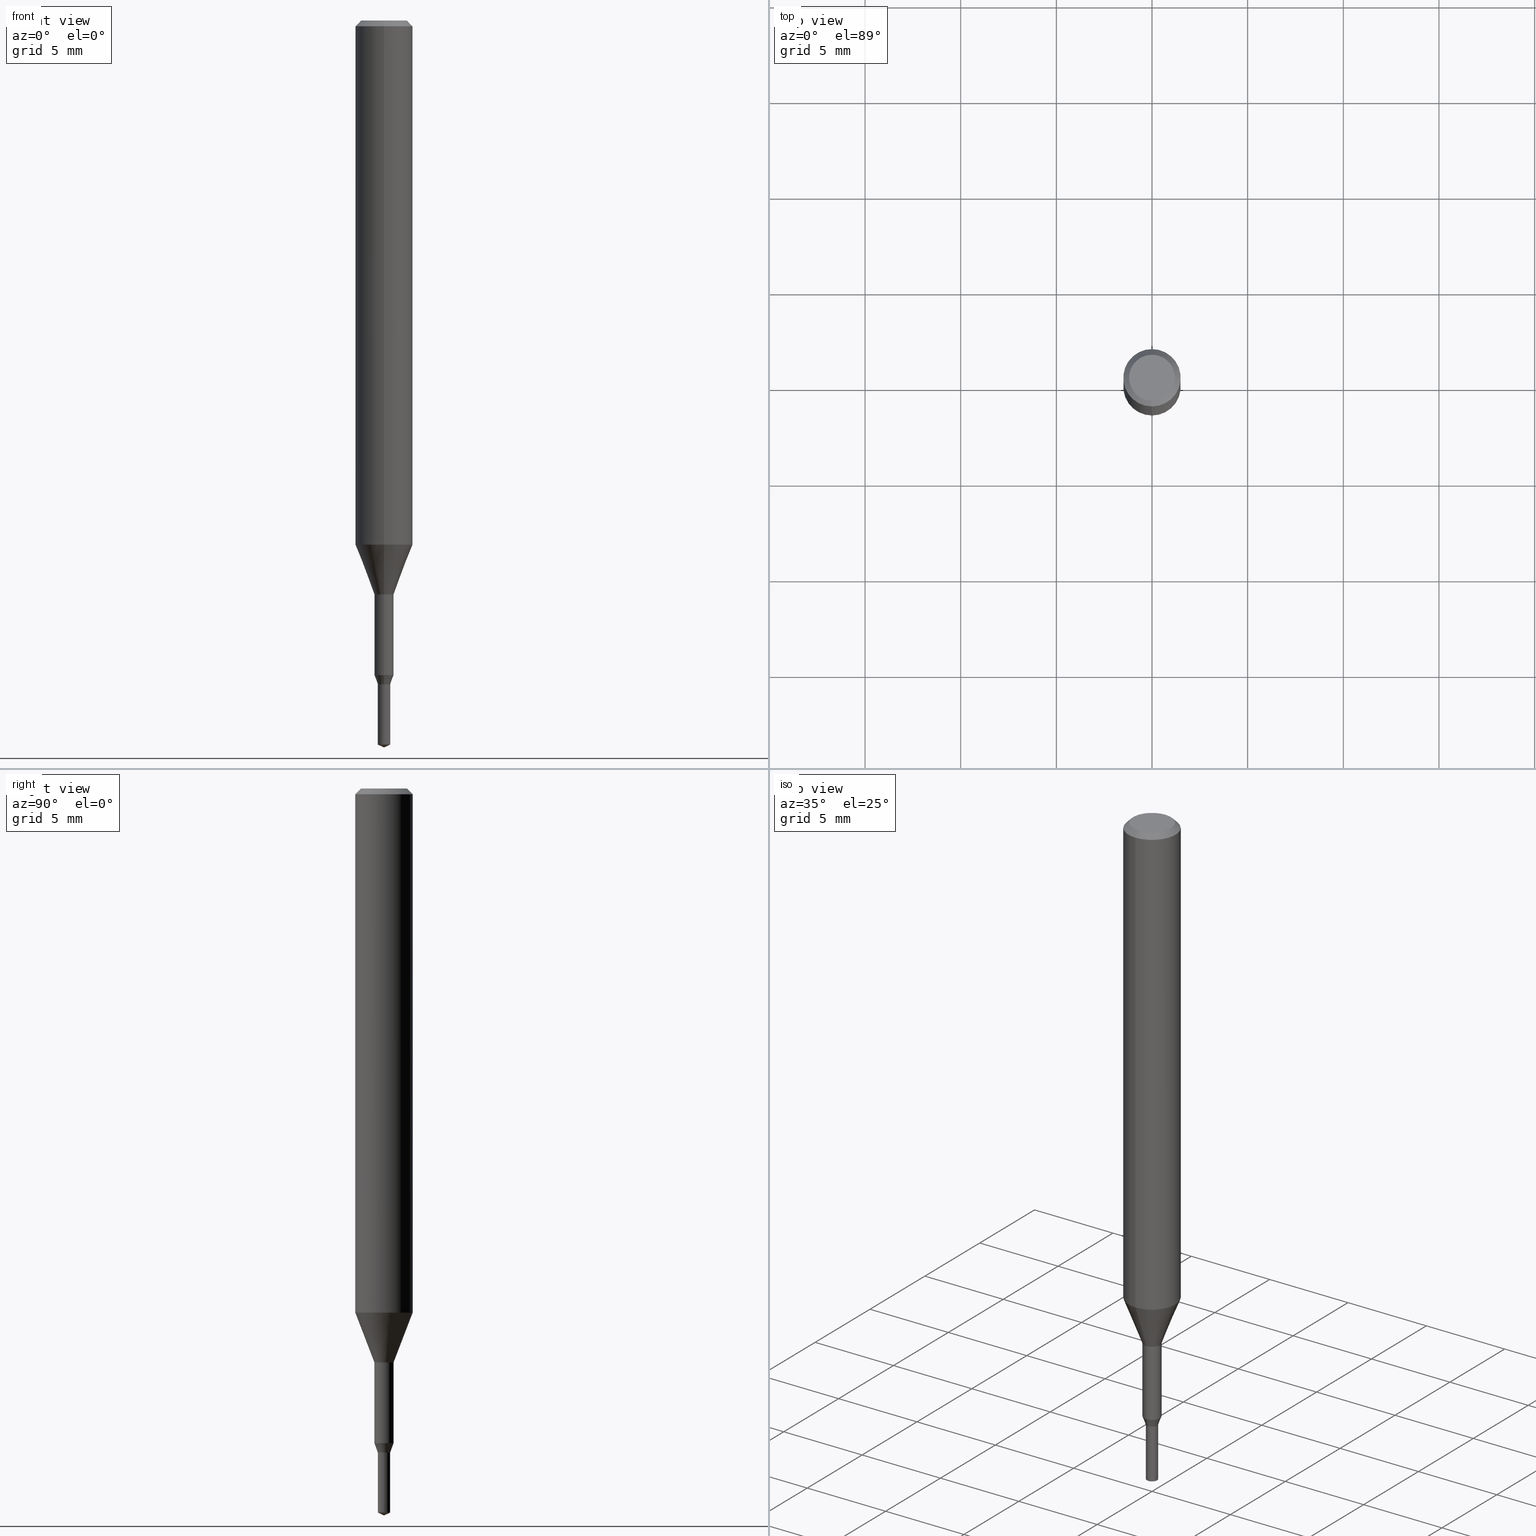
[diagram: canonical four-view strip — front | top / right | iso, engineering-drawing reading convention]
A machine part, canonical four-view strip (front | top / right | iso — engineering-drawing reading convention). The complete STEP part file that produces these views, byte-faithful:
ISO-10303-21;
HEADER;
FILE_DESCRIPTION(('no description'),'unknown implementation level');
FILE_NAME('UTDSX2065-033-Huellk.stp','  ',('CIMSOURCE GmbH'),('CADClick - KiM GmbH - www.kimweb.de'),'unknown preprocess','ACIS','unknown authorization');
FILE_SCHEMA(('automotive_design'));
ENDSEC;
DATA;
#1=MECHANICAL_DESIGN_GEOMETRIC_PRESENTATION_REPRESENTATION(' ',(#14,#15,#16,#17,#18,#19,#20,#21,#22,#23,#24,#25,#26,#27,#28,#29,#30,#31,#32,#33,#34,#35,#36,#37,#38,#39,#40,#41,#42,#43,#44,#45,#46,#47,#48,#49,#50,#51,#52,#53,#54,#55,#56,#57,#58,#59,#60,#61,#62,#63,#64,#65,#66,#67,#68,#69,#70,#71,#72,#73,#74,#75,#76,#77,#78,#79,#80,#81,#82,#83,#84,#85,#86,#87,#88,#89,#90,#91,#92),#10);
#2=PRODUCT_DEFINITION_CONTEXT('',#93,'design');
#3=APPLICATION_PROTOCOL_DEFINITION('INTERNATIONAL STANDARD','automotive_design',1994,#93);
#4=PRODUCT_CATEGORY_RELATIONSHIP('NONE','NONE',#94,#95);
#5=SHAPE_DEFINITION_REPRESENTATION(#96,#97);
#6=PRODUCT_DEFINITION_CONTEXT('',#98,'design');
#7=APPLICATION_PROTOCOL_DEFINITION('INTERNATIONAL STANDARD','automotive_design',1994,#98);
#8=PRODUCT_CATEGORY_RELATIONSHIP('NONE','NONE',#99,#100);
#9=SHAPE_DEFINITION_REPRESENTATION(#101,#102);
#10= (GEOMETRIC_REPRESENTATION_CONTEXT(3)GLOBAL_UNCERTAINTY_ASSIGNED_CONTEXT((#105))GLOBAL_UNIT_ASSIGNED_CONTEXT((#107,#108,#109))REPRESENTATION_CONTEXT('NONE','WORKSPACE'));
#14=STYLED_ITEM('',(#111),#112);
#15=STYLED_ITEM('',(#113),#114);
#16=STYLED_ITEM('',(#115),#116);
#17=STYLED_ITEM('',(#117),#118);
#18=STYLED_ITEM('',(#119),#120);
#19=STYLED_ITEM('',(#121),#122);
#20=STYLED_ITEM('',(#123),#124);
#21=STYLED_ITEM('',(#125),#126);
#22=STYLED_ITEM('',(#127),#128);
#23=STYLED_ITEM('',(#129),#130);
#24=STYLED_ITEM('',(#131),#132);
#25=STYLED_ITEM('',(#133),#134);
#26=STYLED_ITEM('',(#135),#136);
#27=STYLED_ITEM('',(#137),#138);
#28=STYLED_ITEM('',(#139),#140);
#29=STYLED_ITEM('',(#141),#142);
#30=STYLED_ITEM('',(#143),#144);
#31=STYLED_ITEM('',(#145),#146);
#32=STYLED_ITEM('',(#147),#148);
#33=STYLED_ITEM('',(#149),#150);
#34=STYLED_ITEM('',(#151),#152);
#35=STYLED_ITEM('',(#153),#154);
#36=STYLED_ITEM('',(#155),#156);
#37=STYLED_ITEM('',(#157),#158);
#38=STYLED_ITEM('',(#159),#160);
#39=STYLED_ITEM('',(#161),#162);
#40=STYLED_ITEM('',(#163),#164);
#41=STYLED_ITEM('',(#165),#166);
#42=STYLED_ITEM('',(#167),#168);
#43=STYLED_ITEM('',(#169),#170);
#44=STYLED_ITEM('',(#171),#172);
#45=STYLED_ITEM('',(#173),#174);
#46=STYLED_ITEM('',(#175),#176);
#47=STYLED_ITEM('',(#177),#178);
#48=STYLED_ITEM('',(#179),#180);
#49=STYLED_ITEM('',(#181),#182);
#50=STYLED_ITEM('',(#183),#184);
#51=STYLED_ITEM('',(#185),#186);
#52=STYLED_ITEM('',(#187),#188);
#53=STYLED_ITEM('',(#189),#190);
#54=STYLED_ITEM('',(#191),#192);
#55=STYLED_ITEM('',(#193),#194);
#56=STYLED_ITEM('',(#195),#196);
#57=STYLED_ITEM('',(#197),#198);
#58=STYLED_ITEM('',(#199),#200);
#59=STYLED_ITEM('',(#201),#202);
#60=STYLED_ITEM('',(#203),#204);
#61=STYLED_ITEM('',(#205),#206);
#62=STYLED_ITEM('',(#207),#208);
#63=STYLED_ITEM('',(#209),#210);
#64=STYLED_ITEM('',(#211),#212);
#65=STYLED_ITEM('',(#213),#214);
#66=STYLED_ITEM('',(#215),#216);
#67=STYLED_ITEM('',(#217),#218);
#68=STYLED_ITEM('',(#219),#220);
#69=STYLED_ITEM('',(#221),#222);
#70=STYLED_ITEM('',(#223),#224);
#71=STYLED_ITEM('',(#225),#226);
#72=STYLED_ITEM('',(#227),#228);
#73=STYLED_ITEM('',(#229),#230);
#74=STYLED_ITEM('',(#231),#232);
#75=STYLED_ITEM('',(#233),#234);
#76=STYLED_ITEM('',(#235),#236);
#77=STYLED_ITEM('',(#237),#238);
#78=STYLED_ITEM('',(#239),#240);
#79=STYLED_ITEM('',(#241),#242);
#80=STYLED_ITEM('',(#243),#244);
#81=STYLED_ITEM('',(#245),#246);
#82=STYLED_ITEM('',(#247),#248);
#83=STYLED_ITEM('',(#249),#250);
#84=STYLED_ITEM('',(#251),#252);
#85=STYLED_ITEM('',(#253),#254);
#86=STYLED_ITEM('',(#255),#256);
#87=STYLED_ITEM('',(#257),#258);
#88=STYLED_ITEM('',(#259),#260);
#89=STYLED_ITEM('',(#261),#262);
#90=STYLED_ITEM('',(#263),#264);
#91=STYLED_ITEM('',(#265),#266);
#92=STYLED_ITEM('',(#267),#268);
#93=APPLICATION_CONTEXT(' ');
#94=PRODUCT_CATEGORY('part','NONE');
#95=PRODUCT_RELATED_PRODUCT_CATEGORY('detail',' ',(#269));
#96=PRODUCT_DEFINITION_SHAPE('NONE','NONE',#270);
#97=ADVANCED_BREP_SHAPE_REPRESENTATION('1',(#134,#271),#10);
#98=APPLICATION_CONTEXT(' ');
#99=PRODUCT_CATEGORY('part','NONE');
#100=PRODUCT_RELATED_PRODUCT_CATEGORY('detail',' ',(#272));
#101=PRODUCT_DEFINITION_SHAPE('NONE','NONE',#273);
#102=ADVANCED_BREP_SHAPE_REPRESENTATION('2',(#192,#274),#10);
#105=UNCERTAINTY_MEASURE_WITH_UNIT(LENGTH_MEASURE(1.0E-006),#107,'','');
#107= (CONVERSION_BASED_UNIT('MILLIMETRE',#277)LENGTH_UNIT()NAMED_UNIT(#280));
#108= (NAMED_UNIT(#282)PLANE_ANGLE_UNIT()SI_UNIT($,.RADIAN.));
#109= (NAMED_UNIT(#282)SOLID_ANGLE_UNIT()SI_UNIT($,.STERADIAN.));
#111=PRESENTATION_STYLE_ASSIGNMENT((#288));
#112=EDGE_CURVE('',#236,#268,#289,.T.);
#113=PRESENTATION_STYLE_ASSIGNMENT((#290));
#114=VERTEX_POINT('',#291);
#115=PRESENTATION_STYLE_ASSIGNMENT((#292));
#116=EDGE_CURVE('',#140,#242,#293,.T.);
#117=PRESENTATION_STYLE_ASSIGNMENT((#294));
#118=ADVANCED_FACE('',(#295),#296,.T.);
#119=PRESENTATION_STYLE_ASSIGNMENT((#297));
#120=EDGE_CURVE('',#114,#200,#298,.T.);
#121=PRESENTATION_STYLE_ASSIGNMENT((#299));
#122=VERTEX_POINT('',#300);
#123=PRESENTATION_STYLE_ASSIGNMENT((#301));
#124=ADVANCED_FACE('',(#302,#303),#304,.T.);
#125=PRESENTATION_STYLE_ASSIGNMENT((#305));
#126=EDGE_CURVE('',#250,#140,#306,.T.);
#127=PRESENTATION_STYLE_ASSIGNMENT((#307));
#128=ADVANCED_FACE('',(#308),#309,.T.);
#129=PRESENTATION_STYLE_ASSIGNMENT((#310));
#130=VERTEX_POINT('',#311);
#131=PRESENTATION_STYLE_ASSIGNMENT((#312));
#132=EDGE_CURVE('',#130,#242,#313,.T.);
#133=PRESENTATION_STYLE_ASSIGNMENT((#314));
#134=MANIFOLD_SOLID_BREP('1',#315);
#135=PRESENTATION_STYLE_ASSIGNMENT((#316));
#136=VERTEX_POINT('',#317);
#137=PRESENTATION_STYLE_ASSIGNMENT((#318));
#138=EDGE_CURVE('',#142,#268,#319,.T.);
#139=PRESENTATION_STYLE_ASSIGNMENT((#320));
#140=VERTEX_POINT('',#321);
#141=PRESENTATION_STYLE_ASSIGNMENT((#322));
#142=VERTEX_POINT('',#323);
#143=PRESENTATION_STYLE_ASSIGNMENT((#324));
#144=EDGE_CURVE('',#202,#256,#325,.T.);
#145=PRESENTATION_STYLE_ASSIGNMENT((#326));
#146=EDGE_CURVE('',#268,#256,#327,.T.);
#147=PRESENTATION_STYLE_ASSIGNMENT((#328));
#148=EDGE_CURVE('',#130,#250,#329,.T.);
#149=PRESENTATION_STYLE_ASSIGNMENT((#330));
#150=VERTEX_POINT('',#331);
#151=PRESENTATION_STYLE_ASSIGNMENT((#332));
#152=EDGE_CURVE('',#122,#150,#333,.T.);
#153=PRESENTATION_STYLE_ASSIGNMENT((#334));
#154=VERTEX_POINT('',#335);
#155=PRESENTATION_STYLE_ASSIGNMENT((#336));
#156=EDGE_CURVE('',#140,#250,#337,.T.);
#157=PRESENTATION_STYLE_ASSIGNMENT((#338));
#158=VERTEX_POINT('',#339);
#159=PRESENTATION_STYLE_ASSIGNMENT((#340));
#160=EDGE_CURVE('',#208,#264,#341,.T.);
#161=PRESENTATION_STYLE_ASSIGNMENT((#342));
#162=ADVANCED_FACE('',(#343),#344,.T.);
#163=PRESENTATION_STYLE_ASSIGNMENT((#345));
#164=EDGE_CURVE('',#200,#114,#346,.T.);
#165=PRESENTATION_STYLE_ASSIGNMENT((#347));
#166=EDGE_CURVE('',#268,#236,#348,.T.);
#167=PRESENTATION_STYLE_ASSIGNMENT((#349));
#168=ADVANCED_FACE('',(#350),#351,.T.);
#169=PRESENTATION_STYLE_ASSIGNMENT((#352));
#170=EDGE_CURVE('',#220,#228,#353,.T.);
#171=PRESENTATION_STYLE_ASSIGNMENT((#354));
#172=EDGE_CURVE('',#150,#140,#355,.T.);
#173=PRESENTATION_STYLE_ASSIGNMENT((#356));
#174=EDGE_CURVE('',#220,#136,#357,.T.);
#175=PRESENTATION_STYLE_ASSIGNMENT((#358));
#176=EDGE_CURVE('',#242,#114,#359,.T.);
#177=PRESENTATION_STYLE_ASSIGNMENT((#360));
#178=EDGE_CURVE('',#256,#202,#361,.T.);
#179=PRESENTATION_STYLE_ASSIGNMENT((#362));
#180=EDGE_CURVE('',#264,#208,#363,.T.);
#181=PRESENTATION_STYLE_ASSIGNMENT((#364));
#182=ADVANCED_FACE('',(#365),#366,.T.);
#183=PRESENTATION_STYLE_ASSIGNMENT((#367));
#184=ADVANCED_FACE('',(#368),#369,.T.);
#185=PRESENTATION_STYLE_ASSIGNMENT((#370));
#186=EDGE_CURVE('',#150,#122,#371,.T.);
#187=PRESENTATION_STYLE_ASSIGNMENT((#372));
#188=EDGE_CURVE('',#236,#262,#373,.T.);
#189=PRESENTATION_STYLE_ASSIGNMENT((#374));
#190=EDGE_CURVE('',#136,#220,#375,.T.);
#191=PRESENTATION_STYLE_ASSIGNMENT((#376));
#192=MANIFOLD_SOLID_BREP('2',#377);
#193=PRESENTATION_STYLE_ASSIGNMENT((#378));
#194=ADVANCED_FACE('',(#379),#380,.T.);
#195=PRESENTATION_STYLE_ASSIGNMENT((#381));
#196=ADVANCED_FACE('',(#382),#383,.T.);
#197=PRESENTATION_STYLE_ASSIGNMENT((#384));
#198=ADVANCED_FACE('',(#385),#386,.T.);
#199=PRESENTATION_STYLE_ASSIGNMENT((#387));
#200=VERTEX_POINT('',#388);
#201=PRESENTATION_STYLE_ASSIGNMENT((#389));
#202=VERTEX_POINT('',#390);
#203=PRESENTATION_STYLE_ASSIGNMENT((#391));
#204=ADVANCED_FACE('',(#392),#393,.T.);
#205=PRESENTATION_STYLE_ASSIGNMENT((#394));
#206=ADVANCED_FACE('',(#395),#396,.T.);
#207=PRESENTATION_STYLE_ASSIGNMENT((#397));
#208=VERTEX_POINT('',#398);
#209=PRESENTATION_STYLE_ASSIGNMENT((#399));
#210=ADVANCED_FACE('',(#400),#401,.T.);
#211=PRESENTATION_STYLE_ASSIGNMENT((#402));
#212=EDGE_CURVE('',#262,#142,#403,.T.);
#213=PRESENTATION_STYLE_ASSIGNMENT((#404));
#214=EDGE_CURVE('',#202,#236,#405,.T.);
#215=PRESENTATION_STYLE_ASSIGNMENT((#406));
#216=EDGE_CURVE('',#200,#130,#407,.T.);
#217=PRESENTATION_STYLE_ASSIGNMENT((#408));
#218=EDGE_CURVE('',#242,#130,#409,.T.);
#219=PRESENTATION_STYLE_ASSIGNMENT((#410));
#220=VERTEX_POINT('',#411);
#221=PRESENTATION_STYLE_ASSIGNMENT((#412));
#222=EDGE_CURVE('',#154,#264,#413,.T.);
#223=PRESENTATION_STYLE_ASSIGNMENT((#414));
#224=EDGE_CURVE('',#158,#220,#415,.T.);
#225=PRESENTATION_STYLE_ASSIGNMENT((#416));
#226=ADVANCED_FACE('',(#417),#418,.T.);
#227=PRESENTATION_STYLE_ASSIGNMENT((#419));
#228=VERTEX_POINT('',#420);
#229=PRESENTATION_STYLE_ASSIGNMENT((#421));
#230=EDGE_CURVE('',#154,#158,#422,.T.);
#231=PRESENTATION_STYLE_ASSIGNMENT((#423));
#232=EDGE_CURVE('',#250,#122,#424,.T.);
#233=PRESENTATION_STYLE_ASSIGNMENT((#425));
#234=ADVANCED_FACE('',(#426),#427,.T.);
#235=PRESENTATION_STYLE_ASSIGNMENT((#428));
#236=VERTEX_POINT('',#429);
#237=PRESENTATION_STYLE_ASSIGNMENT((#430));
#238=EDGE_CURVE('',#136,#154,#431,.T.);
#239=PRESENTATION_STYLE_ASSIGNMENT((#432));
#240=ADVANCED_FACE('',(#433),#434,.T.);
#241=PRESENTATION_STYLE_ASSIGNMENT((#435));
#242=VERTEX_POINT('',#436);
#243=PRESENTATION_STYLE_ASSIGNMENT((#437));
#244=EDGE_CURVE('',#158,#154,#438,.T.);
#245=PRESENTATION_STYLE_ASSIGNMENT((#439));
#246=ADVANCED_FACE('',(#440),#441,.T.);
#247=PRESENTATION_STYLE_ASSIGNMENT((#442));
#248=ADVANCED_FACE('',(#443),#444,.T.);
#249=PRESENTATION_STYLE_ASSIGNMENT((#445));
#250=VERTEX_POINT('',#446);
#251=PRESENTATION_STYLE_ASSIGNMENT((#447));
#252=EDGE_CURVE('',#208,#158,#448,.T.);
#253=PRESENTATION_STYLE_ASSIGNMENT((#449));
#254=EDGE_CURVE('',#228,#136,#450,.T.);
#255=PRESENTATION_STYLE_ASSIGNMENT((#451));
#256=VERTEX_POINT('',#452);
#257=PRESENTATION_STYLE_ASSIGNMENT((#453));
#258=ADVANCED_FACE('',(#454),#455,.T.);
#259=PRESENTATION_STYLE_ASSIGNMENT((#456));
#260=ADVANCED_FACE('',(#457),#458,.T.);
#261=PRESENTATION_STYLE_ASSIGNMENT((#459));
#262=VERTEX_POINT('',#460);
#263=PRESENTATION_STYLE_ASSIGNMENT((#461));
#264=VERTEX_POINT('',#462);
#265=PRESENTATION_STYLE_ASSIGNMENT((#463));
#266=EDGE_CURVE('',#142,#262,#464,.T.);
#267=PRESENTATION_STYLE_ASSIGNMENT((#465));
#268=VERTEX_POINT('',#466);
#269=PRODUCT('1','1','PART-1-DESC',(#467));
#270=PRODUCT_DEFINITION('NONE','NONE',#468,#2);
#271=AXIS2_PLACEMENT_3D('',#469,#470,#471);
#272=PRODUCT('2','2','PART-2-DESC',(#472));
#273=PRODUCT_DEFINITION('NONE','NONE',#473,#6);
#274=AXIS2_PLACEMENT_3D('',#474,#475,#476);
#277=LENGTH_MEASURE_WITH_UNIT(LENGTH_MEASURE(1.0),#477);
#280=DIMENSIONAL_EXPONENTS(1.0,0.0,0.0,0.0,0.0,0.0,0.0);
#282=DIMENSIONAL_EXPONENTS(0.0,0.0,0.0,0.0,0.0,0.0,0.0);
#288=CURVE_STYLE('',#478,POSITIVE_LENGTH_MEASURE(1.0E-006),#479);
#289=CIRCLE('',#480,0.49995);
#290=POINT_STYLE(' ',#481,POSITIVE_LENGTH_MEASURE(1.0E-006),#482);
#291=CARTESIAN_POINT('',(0.0,0.5,-30.0));
#292=CURVE_STYLE('',#483,POSITIVE_LENGTH_MEASURE(1.0E-006),#484);
#293=LINE('',#485,#486);
#294=SURFACE_STYLE_USAGE(.BOTH.,#487);
#295=FACE_OUTER_BOUND('',#488,.T.);
#296=CYLINDRICAL_SURFACE('',#489,1.5);
#297=CURVE_STYLE('',#490,POSITIVE_LENGTH_MEASURE(1.0E-006),#491);
#298=CIRCLE('',#492,0.5);
#299=POINT_STYLE(' ',#493,POSITIVE_LENGTH_MEASURE(1.0E-006),#494);
#300=CARTESIAN_POINT('',(1.46952762458685E-016,-1.2,0.0));
#301=SURFACE_STYLE_USAGE(.BOTH.,#495);
#302=FACE_BOUND('',#496,.T.);
#303=FACE_OUTER_BOUND('',#497,.T.);
#304=PLANE('',#498);
#305=CURVE_STYLE('',#499,POSITIVE_LENGTH_MEASURE(1.0E-006),#500);
#306=CIRCLE('',#501,1.5);
#307=SURFACE_STYLE_USAGE(.BOTH.,#502);
#308=FACE_OUTER_BOUND('',#503,.T.);
#309=CYLINDRICAL_SURFACE('',#504,0.49995);
#310=POINT_STYLE(' ',#505,POSITIVE_LENGTH_MEASURE(1.0E-006),#506);
#311=CARTESIAN_POINT('',(1.83690953073357E-016,-1.5,-27.395));
#312=CURVE_STYLE('',#507,POSITIVE_LENGTH_MEASURE(1.0E-006),#508);
#313=CIRCLE('',#509,1.5);
#314=SURFACE_STYLE_USAGE(.BOTH.,#510);
#315=CLOSED_SHELL('',(#168,#128,#196,#118,#194,#226,#198,#258,#184,#124,#260,#248,#234));
#316=POINT_STYLE(' ',#511,POSITIVE_LENGTH_MEASURE(1.0E-006),#512);
#317=CARTESIAN_POINT('',(0.325,3.97997064992273E-017,-37.84845001));
#318=CURVE_STYLE('',#513,POSITIVE_LENGTH_MEASURE(1.0E-006),#514);
#319=LINE('',#515,#516);
#320=POINT_STYLE(' ',#517,POSITIVE_LENGTH_MEASURE(1.0E-006),#518);
#321=CARTESIAN_POINT('',(0.0,1.5,-0.300000000000001));
#322=POINT_STYLE(' ',#519,POSITIVE_LENGTH_MEASURE(1.0E-006),#520);
#323=CARTESIAN_POINT('',(3.98041606547699E-017,-0.325036372141372,-34.6999));
#324=CURVE_STYLE('',#521,POSITIVE_LENGTH_MEASURE(1.0E-006),#522);
#325=CIRCLE('',#523,0.49995);
#326=CURVE_STYLE('',#524,POSITIVE_LENGTH_MEASURE(1.0E-006),#525);
#327=LINE('',#526,#527);
#328=CURVE_STYLE('',#528,POSITIVE_LENGTH_MEASURE(1.0E-006),#529);
#329=LINE('',#530,#531);
#330=POINT_STYLE(' ',#532,POSITIVE_LENGTH_MEASURE(1.0E-006),#533);
#331=CARTESIAN_POINT('',(0.0,1.2,0.0));
#332=CURVE_STYLE('',#534,POSITIVE_LENGTH_MEASURE(1.0E-006),#535);
#333=CIRCLE('',#536,1.2);
#334=POINT_STYLE(' ',#537,POSITIVE_LENGTH_MEASURE(1.0E-006),#538);
#335=CARTESIAN_POINT('',(0.325,3.97997064992273E-017,-34.7));
#336=CURVE_STYLE('',#539,POSITIVE_LENGTH_MEASURE(1.0E-006),#540);
#337=CIRCLE('',#541,1.5);
#338=POINT_STYLE(' ',#542,POSITIVE_LENGTH_MEASURE(1.0E-006),#543);
#339=CARTESIAN_POINT('',(-0.325,0.0,-34.7));
#340=CURVE_STYLE('',#544,POSITIVE_LENGTH_MEASURE(1.0E-006),#545);
#341=CIRCLE('',#546,0.326036382536383);
#342=SURFACE_STYLE_USAGE(.BOTH.,#547);
#343=FACE_OUTER_BOUND('',#548,.T.);
#344=CYLINDRICAL_SURFACE('',#549,0.325);
#345=CURVE_STYLE('',#550,POSITIVE_LENGTH_MEASURE(1.0E-006),#551);
#346=CIRCLE('',#552,0.5);
#347=CURVE_STYLE('',#553,POSITIVE_LENGTH_MEASURE(1.0E-006),#554);
#348=CIRCLE('',#555,0.49995);
#349=SURFACE_STYLE_USAGE(.BOTH.,#556);
#350=FACE_OUTER_BOUND('',#557,.T.);
#351=CONICAL_SURFACE('',#558,0.412493186070686,0.348846118760369);
#352=CURVE_STYLE('',#559,POSITIVE_LENGTH_MEASURE(1.0E-006),#560);
#353=LINE('',#561,#562);
#354=CURVE_STYLE('',#563,POSITIVE_LENGTH_MEASURE(1.0E-006),#564);
#355=LINE('',#565,#566);
#356=CURVE_STYLE('',#567,POSITIVE_LENGTH_MEASURE(1.0E-006),#568);
#357=CIRCLE('',#569,0.325);
#358=CURVE_STYLE('',#570,POSITIVE_LENGTH_MEASURE(1.0E-006),#571);
#359=LINE('',#572,#573);
#360=CURVE_STYLE('',#574,POSITIVE_LENGTH_MEASURE(1.0E-006),#575);
#361=CIRCLE('',#576,0.49995);
#362=CURVE_STYLE('',#577,POSITIVE_LENGTH_MEASURE(1.0E-006),#578);
#363=CIRCLE('',#579,0.326036382536383);
#364=SURFACE_STYLE_USAGE(.BOTH.,#580);
#365=FACE_OUTER_BOUND('',#581,.T.);
#366=CYLINDRICAL_SURFACE('',#582,0.325);
#367=SURFACE_STYLE_USAGE(.BOTH.,#583);
#368=FACE_OUTER_BOUND('',#584,.T.);
#369=CONICAL_SURFACE('',#585,1.0,0.366530581623394);
#370=CURVE_STYLE('',#586,POSITIVE_LENGTH_MEASURE(1.0E-006),#587);
#371=CIRCLE('',#588,1.2);
#372=CURVE_STYLE('',#589,POSITIVE_LENGTH_MEASURE(1.0E-006),#590);
#373=LINE('',#591,#592);
#374=CURVE_STYLE('',#593,POSITIVE_LENGTH_MEASURE(1.0E-006),#594);
#375=CIRCLE('',#595,0.325);
#376=SURFACE_STYLE_USAGE(.BOTH.,#596);
#377=CLOSED_SHELL('',(#246,#162,#240,#204,#206,#182,#210));
#378=SURFACE_STYLE_USAGE(.BOTH.,#597);
#379=FACE_OUTER_BOUND('',#598,.T.);
#380=CONICAL_SURFACE('',#599,1.35,0.785398163397447);
#381=SURFACE_STYLE_USAGE(.BOTH.,#600);
#382=FACE_OUTER_BOUND('',#601,.T.);
#383=CONICAL_SURFACE('',#602,1.0,0.366530581623394);
#384=SURFACE_STYLE_USAGE(.BOTH.,#603);
#385=FACE_OUTER_BOUND('',#604,.T.);
#386=CONICAL_SURFACE('',#605,1.35,0.785398163397447);
#387=POINT_STYLE(' ',#606,POSITIVE_LENGTH_MEASURE(1.0E-006),#607);
#388=CARTESIAN_POINT('',(6.12303176911189E-017,-0.5,-30.0));
#389=POINT_STYLE(' ',#608,POSITIVE_LENGTH_MEASURE(1.0E-006),#609);
#390=CARTESIAN_POINT('',(0.0,0.49995,-30.0));
#391=SURFACE_STYLE_USAGE(.BOTH.,#610);
#392=FACE_OUTER_BOUND('',#611,.T.);
#393=PLANE('',#612);
#394=SURFACE_STYLE_USAGE(.BOTH.,#613);
#395=FACE_OUTER_BOUND('',#614,.T.);
#396=CONICAL_SURFACE('',#615,0.325518191268191,1.47460464266835);
#397=POINT_STYLE(' ',#616,POSITIVE_LENGTH_MEASURE(1.0E-006),#617);
#398=CARTESIAN_POINT('',(-0.326036382536383,0.0,-34.6999));
#399=SURFACE_STYLE_USAGE(.BOTH.,#618);
#400=FACE_OUTER_BOUND('',#619,.T.);
#401=CONICAL_SURFACE('',#620,0.1625,1.13446401101716);
#402=CURVE_STYLE('',#621,POSITIVE_LENGTH_MEASURE(1.0E-006),#622);
#403=CIRCLE('',#623,0.325036372141372);
#404=CURVE_STYLE('',#624,POSITIVE_LENGTH_MEASURE(1.0E-006),#625);
#405=LINE('',#626,#627);
#406=CURVE_STYLE('',#628,POSITIVE_LENGTH_MEASURE(1.0E-006),#629);
#407=LINE('',#630,#631);
#408=CURVE_STYLE('',#632,POSITIVE_LENGTH_MEASURE(1.0E-006),#633);
#409=CIRCLE('',#634,1.5);
#410=POINT_STYLE(' ',#635,POSITIVE_LENGTH_MEASURE(1.0E-006),#636);
#411=CARTESIAN_POINT('',(-0.325,0.0,-37.84845001));
#412=CURVE_STYLE('',#637,POSITIVE_LENGTH_MEASURE(1.0E-006),#638);
#413=LINE('',#639,#640);
#414=CURVE_STYLE('',#641,POSITIVE_LENGTH_MEASURE(1.0E-006),#642);
#415=LINE('',#643,#644);
#416=SURFACE_STYLE_USAGE(.BOTH.,#645);
#417=FACE_OUTER_BOUND('',#646,.T.);
#418=PLANE('',#647);
#419=POINT_STYLE(' ',#648,POSITIVE_LENGTH_MEASURE(1.0E-006),#649);
#420=CARTESIAN_POINT('',(0.0,0.0,-38.0));
#421=CURVE_STYLE('',#650,POSITIVE_LENGTH_MEASURE(1.0E-006),#651);
#422=CIRCLE('',#652,0.325);
#423=CURVE_STYLE('',#653,POSITIVE_LENGTH_MEASURE(1.0E-006),#654);
#424=LINE('',#655,#656);
#425=SURFACE_STYLE_USAGE(.BOTH.,#657);
#426=FACE_OUTER_BOUND('',#658,.T.);
#427=PLANE('',#659);
#428=POINT_STYLE(' ',#660,POSITIVE_LENGTH_MEASURE(1.0E-006),#661);
#429=CARTESIAN_POINT('',(0.0,0.49995,-34.219));
#430=CURVE_STYLE('',#662,POSITIVE_LENGTH_MEASURE(1.0E-006),#663);
#431=LINE('',#664,#665);
#432=SURFACE_STYLE_USAGE(.BOTH.,#666);
#433=FACE_OUTER_BOUND('',#667,.T.);
#434=CONICAL_SURFACE('',#668,0.325518191268191,1.47460464266835);
#435=POINT_STYLE(' ',#669,POSITIVE_LENGTH_MEASURE(1.0E-006),#670);
#436=CARTESIAN_POINT('',(0.0,1.5,-27.395));
#437=CURVE_STYLE('',#671,POSITIVE_LENGTH_MEASURE(1.0E-006),#672);
#438=CIRCLE('',#673,0.325);
#439=SURFACE_STYLE_USAGE(.BOTH.,#674);
#440=FACE_OUTER_BOUND('',#675,.T.);
#441=CONICAL_SURFACE('',#676,0.1625,1.13446401101716);
#442=SURFACE_STYLE_USAGE(.BOTH.,#677);
#443=FACE_OUTER_BOUND('',#678,.T.);
#444=CONICAL_SURFACE('',#679,0.412493186070686,0.348846118760369);
#445=POINT_STYLE(' ',#680,POSITIVE_LENGTH_MEASURE(1.0E-006),#681);
#446=CARTESIAN_POINT('',(1.83690953073357E-016,-1.5,-0.300000000000001));
#447=CURVE_STYLE('',#682,POSITIVE_LENGTH_MEASURE(1.0E-006),#683);
#448=LINE('',#684,#685);
#449=CURVE_STYLE('',#686,POSITIVE_LENGTH_MEASURE(1.0E-006),#687);
#450=LINE('',#688,#689);
#451=POINT_STYLE(' ',#690,POSITIVE_LENGTH_MEASURE(1.0E-006),#691);
#452=CARTESIAN_POINT('',(6.12241946593498E-017,-0.49995,-30.0));
#453=SURFACE_STYLE_USAGE(.BOTH.,#692);
#454=FACE_OUTER_BOUND('',#693,.T.);
#455=CYLINDRICAL_SURFACE('',#694,1.5);
#456=SURFACE_STYLE_USAGE(.BOTH.,#695);
#457=FACE_OUTER_BOUND('',#696,.T.);
#458=CYLINDRICAL_SURFACE('',#697,0.49995);
#459=POINT_STYLE(' ',#698,POSITIVE_LENGTH_MEASURE(1.0E-006),#699);
#460=CARTESIAN_POINT('',(0.0,0.325036372141372,-34.6999));
#461=POINT_STYLE(' ',#700,POSITIVE_LENGTH_MEASURE(1.0E-006),#701);
#462=CARTESIAN_POINT('',(0.326036382536383,3.99266225631318E-017,-34.6999));
#463=CURVE_STYLE('',#702,POSITIVE_LENGTH_MEASURE(1.0E-006),#703);
#464=CIRCLE('',#704,0.325036372141372);
#465=POINT_STYLE(' ',#705,POSITIVE_LENGTH_MEASURE(1.0E-006),#706);
#466=CARTESIAN_POINT('',(6.12241946593498E-017,-0.49995,-34.219));
#467=PRODUCT_CONTEXT('',#93,'mechanical');
#468=PRODUCT_DEFINITION_FORMATION_WITH_SPECIFIED_SOURCE(' ','NONE',#269,.NOT_KNOWN.);
#469=CARTESIAN_POINT('',(0.0,0.0,0.0));
#470=DIRECTION('',(0.0,0.0,1.0));
#471=DIRECTION('',(1.0,0.0,0.0));
#472=PRODUCT_CONTEXT('',#98,'mechanical');
#473=PRODUCT_DEFINITION_FORMATION_WITH_SPECIFIED_SOURCE(' ','NONE',#272,.NOT_KNOWN.);
#474=CARTESIAN_POINT('',(0.0,0.0,0.0));
#475=DIRECTION('',(0.0,0.0,1.0));
#476=DIRECTION('',(1.0,0.0,0.0));
#477= (NAMED_UNIT(#280)LENGTH_UNIT()SI_UNIT(.MILLI.,.METRE.));
#478=DRAUGHTING_PRE_DEFINED_CURVE_FONT('continuous');
#479=COLOUR_RGB('',0.498039215803146,0.498039215803146,0.498039215803146);
#480=AXIS2_PLACEMENT_3D('',#708,#709,#710);
#481=PRE_DEFINED_MARKER('');
#482=COLOUR_RGB('',0.498039215803146,0.498039215803146,0.498039215803146);
#483=DRAUGHTING_PRE_DEFINED_CURVE_FONT('continuous');
#484=COLOUR_RGB('',0.498039215803146,0.498039215803146,0.498039215803146);
#485=CARTESIAN_POINT('',(-1.83690953073357E-016,1.5,-13.8475));
#486=VECTOR('',#711,1.0);
#487=SURFACE_SIDE_STYLE('',(#712));
#488=EDGE_LOOP('',(#713,#714,#715,#716));
#489=AXIS2_PLACEMENT_3D('',#717,#718,#719);
#490=DRAUGHTING_PRE_DEFINED_CURVE_FONT('continuous');
#491=COLOUR_RGB('',0.498039215803146,0.498039215803146,0.498039215803146);
#492=AXIS2_PLACEMENT_3D('',#720,#721,#722);
#493=PRE_DEFINED_MARKER('');
#494=COLOUR_RGB('',0.498039215803146,0.498039215803146,0.498039215803146);
#495=SURFACE_SIDE_STYLE('',(#723));
#496=EDGE_LOOP('',(#724,#725));
#497=EDGE_LOOP('',(#726,#727));
#498=AXIS2_PLACEMENT_3D('',#728,#729,#730);
#499=DRAUGHTING_PRE_DEFINED_CURVE_FONT('continuous');
#500=COLOUR_RGB('',0.498039215803146,0.498039215803146,0.498039215803146);
#501=AXIS2_PLACEMENT_3D('',#731,#732,#733);
#502=SURFACE_SIDE_STYLE('',(#734));
#503=EDGE_LOOP('',(#735,#736,#737,#738));
#504=AXIS2_PLACEMENT_3D('',#739,#740,#741);
#505=PRE_DEFINED_MARKER('');
#506=COLOUR_RGB('',0.498039215803146,0.498039215803146,0.498039215803146);
#507=DRAUGHTING_PRE_DEFINED_CURVE_FONT('continuous');
#508=COLOUR_RGB('',0.498039215803146,0.498039215803146,0.498039215803146);
#509=AXIS2_PLACEMENT_3D('',#742,#743,#744);
#510=SURFACE_SIDE_STYLE('',(#745));
#511=PRE_DEFINED_MARKER('');
#512=COLOUR_RGB('',0.800000011920929,0.800000011920929,0.800000011920929);
#513=DRAUGHTING_PRE_DEFINED_CURVE_FONT('continuous');
#514=COLOUR_RGB('',0.498039215803146,0.498039215803146,0.498039215803146);
#515=CARTESIAN_POINT('',(5.05141776570598E-017,-0.412493186070686,-34.45945));
#516=VECTOR('',#746,1.0);
#517=PRE_DEFINED_MARKER('');
#518=COLOUR_RGB('',0.498039215803146,0.498039215803146,0.498039215803146);
#519=PRE_DEFINED_MARKER('');
#520=COLOUR_RGB('',0.498039215803146,0.498039215803146,0.498039215803146);
#521=DRAUGHTING_PRE_DEFINED_CURVE_FONT('continuous');
#522=COLOUR_RGB('',0.498039215803146,0.498039215803146,0.498039215803146);
#523=AXIS2_PLACEMENT_3D('',#747,#748,#749);
#524=DRAUGHTING_PRE_DEFINED_CURVE_FONT('continuous');
#525=COLOUR_RGB('',0.498039215803146,0.498039215803146,0.498039215803146);
#526=CARTESIAN_POINT('',(6.12241946593498E-017,-0.49995,-32.1095));
#527=VECTOR('',#750,1.0);
#528=DRAUGHTING_PRE_DEFINED_CURVE_FONT('continuous');
#529=COLOUR_RGB('',0.498039215803146,0.498039215803146,0.498039215803146);
#530=CARTESIAN_POINT('',(1.83690953073357E-016,-1.5,-13.8475));
#531=VECTOR('',#751,1.0);
#532=PRE_DEFINED_MARKER('');
#533=COLOUR_RGB('',0.498039215803146,0.498039215803146,0.498039215803146);
#534=DRAUGHTING_PRE_DEFINED_CURVE_FONT('continuous');
#535=COLOUR_RGB('',0.498039215803146,0.498039215803146,0.498039215803146);
#536=AXIS2_PLACEMENT_3D('',#752,#753,#754);
#537=PRE_DEFINED_MARKER('');
#538=COLOUR_RGB('',0.800000011920929,0.800000011920929,0.800000011920929);
#539=DRAUGHTING_PRE_DEFINED_CURVE_FONT('continuous');
#540=COLOUR_RGB('',0.498039215803146,0.498039215803146,0.498039215803146);
#541=AXIS2_PLACEMENT_3D('',#755,#756,#757);
#542=PRE_DEFINED_MARKER('');
#543=COLOUR_RGB('',0.800000011920929,0.800000011920929,0.800000011920929);
#544=DRAUGHTING_PRE_DEFINED_CURVE_FONT('continuous');
#545=COLOUR_RGB('',0.800000011920929,0.800000011920929,0.800000011920929);
#546=AXIS2_PLACEMENT_3D('',#758,#759,#760);
#547=SURFACE_SIDE_STYLE('',(#761));
#548=EDGE_LOOP('',(#762,#763,#764,#765));
#549=AXIS2_PLACEMENT_3D('',#766,#767,#768);
#550=DRAUGHTING_PRE_DEFINED_CURVE_FONT('continuous');
#551=COLOUR_RGB('',0.498039215803146,0.498039215803146,0.498039215803146);
#552=AXIS2_PLACEMENT_3D('',#769,#770,#771);
#553=DRAUGHTING_PRE_DEFINED_CURVE_FONT('continuous');
#554=COLOUR_RGB('',0.498039215803146,0.498039215803146,0.498039215803146);
#555=AXIS2_PLACEMENT_3D('',#772,#773,#774);
#556=SURFACE_SIDE_STYLE('',(#775));
#557=EDGE_LOOP('',(#776,#777,#778,#779));
#558=AXIS2_PLACEMENT_3D('',#780,#781,#782);
#559=DRAUGHTING_PRE_DEFINED_CURVE_FONT('continuous');
#560=COLOUR_RGB('',0.800000011920929,0.800000011920929,0.800000011920929);
#561=CARTESIAN_POINT('',(-0.1625,-1.98998532496136E-017,-37.924225005));
#562=VECTOR('',#783,1.0);
#563=DRAUGHTING_PRE_DEFINED_CURVE_FONT('continuous');
#564=COLOUR_RGB('',0.498039215803146,0.498039215803146,0.498039215803146);
#565=CARTESIAN_POINT('',(-1.65321857766021E-016,1.35,-0.150000000000002));
#566=VECTOR('',#784,1.0);
#567=DRAUGHTING_PRE_DEFINED_CURVE_FONT('continuous');
#568=COLOUR_RGB('',0.800000011920929,0.800000011920929,0.800000011920929);
#569=AXIS2_PLACEMENT_3D('',#785,#786,#787);
#570=DRAUGHTING_PRE_DEFINED_CURVE_FONT('continuous');
#571=COLOUR_RGB('',0.498039215803146,0.498039215803146,0.498039215803146);
#572=CARTESIAN_POINT('',(-1.22460635382238E-016,1.0,-28.6975));
#573=VECTOR('',#788,1.0);
#574=DRAUGHTING_PRE_DEFINED_CURVE_FONT('continuous');
#575=COLOUR_RGB('',0.498039215803146,0.498039215803146,0.498039215803146);
#576=AXIS2_PLACEMENT_3D('',#789,#790,#791);
#577=DRAUGHTING_PRE_DEFINED_CURVE_FONT('continuous');
#578=COLOUR_RGB('',0.800000011920929,0.800000011920929,0.800000011920929);
#579=AXIS2_PLACEMENT_3D('',#792,#793,#794);
#580=SURFACE_SIDE_STYLE('',(#795));
#581=EDGE_LOOP('',(#796,#797,#798,#799));
#582=AXIS2_PLACEMENT_3D('',#800,#801,#802);
#583=SURFACE_SIDE_STYLE('',(#803));
#584=EDGE_LOOP('',(#804,#805,#806,#807));
#585=AXIS2_PLACEMENT_3D('',#808,#809,#810);
#586=DRAUGHTING_PRE_DEFINED_CURVE_FONT('continuous');
#587=COLOUR_RGB('',0.498039215803146,0.498039215803146,0.498039215803146);
#588=AXIS2_PLACEMENT_3D('',#811,#812,#813);
#589=DRAUGHTING_PRE_DEFINED_CURVE_FONT('continuous');
#590=COLOUR_RGB('',0.498039215803146,0.498039215803146,0.498039215803146);
#591=CARTESIAN_POINT('',(-5.05141776570598E-017,0.412493186070686,-34.45945));
#592=VECTOR('',#814,1.0);
#593=DRAUGHTING_PRE_DEFINED_CURVE_FONT('continuous');
#594=COLOUR_RGB('',0.800000011920929,0.800000011920929,0.800000011920929);
#595=AXIS2_PLACEMENT_3D('',#815,#816,#817);
#596=SURFACE_SIDE_STYLE('',(#818));
#597=SURFACE_SIDE_STYLE('',(#819));
#598=EDGE_LOOP('',(#820,#821,#822,#823));
#599=AXIS2_PLACEMENT_3D('',#824,#825,#826);
#600=SURFACE_SIDE_STYLE('',(#827));
#601=EDGE_LOOP('',(#828,#829,#830,#831));
#602=AXIS2_PLACEMENT_3D('',#832,#833,#834);
#603=SURFACE_SIDE_STYLE('',(#835));
#604=EDGE_LOOP('',(#836,#837,#838,#839));
#605=AXIS2_PLACEMENT_3D('',#840,#841,#842);
#606=PRE_DEFINED_MARKER('');
#607=COLOUR_RGB('',0.498039215803146,0.498039215803146,0.498039215803146);
#608=PRE_DEFINED_MARKER('');
#609=COLOUR_RGB('',0.498039215803146,0.498039215803146,0.498039215803146);
#610=SURFACE_SIDE_STYLE('',(#843));
#611=EDGE_LOOP('',(#844,#845));
#612=AXIS2_PLACEMENT_3D('',#846,#847,#848);
#613=SURFACE_SIDE_STYLE('',(#849));
#614=EDGE_LOOP('',(#850,#851,#852,#853));
#615=AXIS2_PLACEMENT_3D('',#854,#855,#856);
#616=PRE_DEFINED_MARKER('');
#617=COLOUR_RGB('',0.800000011920929,0.800000011920929,0.800000011920929);
#618=SURFACE_SIDE_STYLE('',(#857));
#619=EDGE_LOOP('',(#858,#859,#860));
#620=AXIS2_PLACEMENT_3D('',#861,#862,#863);
#621=DRAUGHTING_PRE_DEFINED_CURVE_FONT('continuous');
#622=COLOUR_RGB('',0.498039215803146,0.498039215803146,0.498039215803146);
#623=AXIS2_PLACEMENT_3D('',#864,#865,#866);
#624=DRAUGHTING_PRE_DEFINED_CURVE_FONT('continuous');
#625=COLOUR_RGB('',0.498039215803146,0.498039215803146,0.498039215803146);
#626=CARTESIAN_POINT('',(-6.12241946593498E-017,0.49995,-32.1095));
#627=VECTOR('',#867,1.0);
#628=DRAUGHTING_PRE_DEFINED_CURVE_FONT('continuous');
#629=COLOUR_RGB('',0.498039215803146,0.498039215803146,0.498039215803146);
#630=CARTESIAN_POINT('',(1.22460635382238E-016,-1.0,-28.6975));
#631=VECTOR('',#868,1.0);
#632=DRAUGHTING_PRE_DEFINED_CURVE_FONT('continuous');
#633=COLOUR_RGB('',0.498039215803146,0.498039215803146,0.498039215803146);
#634=AXIS2_PLACEMENT_3D('',#869,#870,#871);
#635=PRE_DEFINED_MARKER('');
#636=COLOUR_RGB('',0.800000011920929,0.800000011920929,0.800000011920929);
#637=DRAUGHTING_PRE_DEFINED_CURVE_FONT('continuous');
#638=COLOUR_RGB('',0.800000011920929,0.800000011920929,0.800000011920929);
#639=CARTESIAN_POINT('',(0.325518191268191,3.98631645311795E-017,-34.69995));
#640=VECTOR('',#872,1.0);
#641=DRAUGHTING_PRE_DEFINED_CURVE_FONT('continuous');
#642=COLOUR_RGB('',0.800000011920929,0.800000011920929,0.800000011920929);
#643=CARTESIAN_POINT('',(-0.325,-3.97997064992273E-017,-36.274225005));
#644=VECTOR('',#873,1.0);
#645=SURFACE_SIDE_STYLE('',(#874));
#646=EDGE_LOOP('',(#875,#876));
#647=AXIS2_PLACEMENT_3D('',#877,#878,#879);
#648=PRE_DEFINED_MARKER('');
#649=COLOUR_RGB('',0.800000011920929,0.800000011920929,0.800000011920929);
#650=DRAUGHTING_PRE_DEFINED_CURVE_FONT('continuous');
#651=COLOUR_RGB('',0.800000011920929,0.800000011920929,0.800000011920929);
#652=AXIS2_PLACEMENT_3D('',#880,#881,#882);
#653=DRAUGHTING_PRE_DEFINED_CURVE_FONT('continuous');
#654=COLOUR_RGB('',0.498039215803146,0.498039215803146,0.498039215803146);
#655=CARTESIAN_POINT('',(1.65321857766021E-016,-1.35,-0.150000000000002));
#656=VECTOR('',#883,1.0);
#657=SURFACE_SIDE_STYLE('',(#884));
#658=EDGE_LOOP('',(#885,#886));
#659=AXIS2_PLACEMENT_3D('',#887,#888,#889);
#660=PRE_DEFINED_MARKER('');
#661=COLOUR_RGB('',0.498039215803146,0.498039215803146,0.498039215803146);
#662=DRAUGHTING_PRE_DEFINED_CURVE_FONT('continuous');
#663=COLOUR_RGB('',0.800000011920929,0.800000011920929,0.800000011920929);
#664=CARTESIAN_POINT('',(0.325,3.97997064992273E-017,-36.274225005));
#665=VECTOR('',#890,1.0);
#666=SURFACE_SIDE_STYLE('',(#891));
#667=EDGE_LOOP('',(#892,#893,#894,#895));
#668=AXIS2_PLACEMENT_3D('',#896,#897,#898);
#669=PRE_DEFINED_MARKER('');
#670=COLOUR_RGB('',0.498039215803146,0.498039215803146,0.498039215803146);
#671=DRAUGHTING_PRE_DEFINED_CURVE_FONT('continuous');
#672=COLOUR_RGB('',0.800000011920929,0.800000011920929,0.800000011920929);
#673=AXIS2_PLACEMENT_3D('',#899,#900,#901);
#674=SURFACE_SIDE_STYLE('',(#902));
#675=EDGE_LOOP('',(#903,#904,#905));
#676=AXIS2_PLACEMENT_3D('',#906,#907,#908);
#677=SURFACE_SIDE_STYLE('',(#909));
#678=EDGE_LOOP('',(#910,#911,#912,#913));
#679=AXIS2_PLACEMENT_3D('',#914,#915,#916);
#680=PRE_DEFINED_MARKER('');
#681=COLOUR_RGB('',0.498039215803146,0.498039215803146,0.498039215803146);
#682=DRAUGHTING_PRE_DEFINED_CURVE_FONT('continuous');
#683=COLOUR_RGB('',0.800000011920929,0.800000011920929,0.800000011920929);
#684=CARTESIAN_POINT('',(-0.325518191268191,-3.98631645311795E-017,-34.69995));
#685=VECTOR('',#917,1.0);
#686=DRAUGHTING_PRE_DEFINED_CURVE_FONT('continuous');
#687=COLOUR_RGB('',0.800000011920929,0.800000011920929,0.800000011920929);
#688=CARTESIAN_POINT('',(0.1625,1.98998532496136E-017,-37.924225005));
#689=VECTOR('',#918,1.0);
#690=PRE_DEFINED_MARKER('');
#691=COLOUR_RGB('',0.498039215803146,0.498039215803146,0.498039215803146);
#692=SURFACE_SIDE_STYLE('',(#919));
#693=EDGE_LOOP('',(#920,#921,#922,#923));
#694=AXIS2_PLACEMENT_3D('',#924,#925,#926);
#695=SURFACE_SIDE_STYLE('',(#927));
#696=EDGE_LOOP('',(#928,#929,#930,#931));
#697=AXIS2_PLACEMENT_3D('',#932,#933,#934);
#698=PRE_DEFINED_MARKER('');
#699=COLOUR_RGB('',0.498039215803146,0.498039215803146,0.498039215803146);
#700=PRE_DEFINED_MARKER('');
#701=COLOUR_RGB('',0.800000011920929,0.800000011920929,0.800000011920929);
#702=DRAUGHTING_PRE_DEFINED_CURVE_FONT('continuous');
#703=COLOUR_RGB('',0.498039215803146,0.498039215803146,0.498039215803146);
#704=AXIS2_PLACEMENT_3D('',#935,#936,#937);
#705=PRE_DEFINED_MARKER('');
#706=COLOUR_RGB('',0.498039215803146,0.498039215803146,0.498039215803146);
#708=CARTESIAN_POINT('',(0.0,0.0,-34.219));
#709=DIRECTION('',(0.0,0.0,-1.0));
#710=DIRECTION('',(0.0,1.0,0.0));
#711=DIRECTION('',(0.0,0.0,-1.0));
#712=SURFACE_STYLE_FILL_AREA(#938);
#713=ORIENTED_EDGE('',*,*,#116,.F.);
#714=ORIENTED_EDGE('',*,*,#156,.T.);
#715=ORIENTED_EDGE('',*,*,#148,.F.);
#716=ORIENTED_EDGE('',*,*,#218,.F.);
#717=CARTESIAN_POINT('',(0.0,0.0,-13.8475));
#718=DIRECTION('',(-0.0,-0.0,1.0));
#719=DIRECTION('',(0.0,1.0,0.0));
#720=CARTESIAN_POINT('',(0.0,0.0,-30.0));
#721=DIRECTION('',(0.0,0.0,-1.0));
#722=DIRECTION('',(0.0,1.0,0.0));
#723=SURFACE_STYLE_FILL_AREA(#939);
#724=ORIENTED_EDGE('',*,*,#144,.F.);
#725=ORIENTED_EDGE('',*,*,#178,.F.);
#726=ORIENTED_EDGE('',*,*,#120,.T.);
#727=ORIENTED_EDGE('',*,*,#164,.T.);
#728=CARTESIAN_POINT('',(0.0,0.499975,-30.0));
#729=DIRECTION('',(0.0,0.0,-1.0));
#730=DIRECTION('',(0.0,1.0,0.0));
#731=CARTESIAN_POINT('',(0.0,0.0,-0.300000000000001));
#732=DIRECTION('',(0.0,0.0,-1.0));
#733=DIRECTION('',(0.0,1.0,0.0));
#734=SURFACE_STYLE_FILL_AREA(#940);
#735=ORIENTED_EDGE('',*,*,#214,.F.);
#736=ORIENTED_EDGE('',*,*,#144,.T.);
#737=ORIENTED_EDGE('',*,*,#146,.F.);
#738=ORIENTED_EDGE('',*,*,#112,.F.);
#739=CARTESIAN_POINT('',(0.0,0.0,-32.1095));
#740=DIRECTION('',(-0.0,-0.0,1.0));
#741=DIRECTION('',(0.0,1.0,0.0));
#742=CARTESIAN_POINT('',(0.0,0.0,-27.395));
#743=DIRECTION('',(0.0,0.0,-1.0));
#744=DIRECTION('',(0.0,1.0,0.0));
#745=SURFACE_STYLE_FILL_AREA(#941);
#746=DIRECTION('',(4.18587173578737E-017,-0.341813654871377,0.939767750746679));
#747=CARTESIAN_POINT('',(0.0,0.0,-30.0));
#748=DIRECTION('',(0.0,0.0,-1.0));
#749=DIRECTION('',(0.0,1.0,0.0));
#750=DIRECTION('',(-0.0,-0.0,1.0));
#751=DIRECTION('',(-0.0,-0.0,1.0));
#752=CARTESIAN_POINT('',(0.0,0.0,0.0));
#753=DIRECTION('',(0.0,0.0,-1.0));
#754=DIRECTION('',(0.0,1.0,0.0));
#755=CARTESIAN_POINT('',(0.0,0.0,-0.300000000000001));
#756=DIRECTION('',(0.0,0.0,-1.0));
#757=DIRECTION('',(0.0,1.0,0.0));
#758=CARTESIAN_POINT('',(0.0,0.0,-34.6999));
#759=DIRECTION('',(0.0,0.0,-1.0));
#760=DIRECTION('',(-1.0,0.0,0.0));
#761=SURFACE_STYLE_FILL_AREA(#942);
#762=ORIENTED_EDGE('',*,*,#224,.F.);
#763=ORIENTED_EDGE('',*,*,#244,.T.);
#764=ORIENTED_EDGE('',*,*,#238,.F.);
#765=ORIENTED_EDGE('',*,*,#174,.F.);
#766=CARTESIAN_POINT('',(0.0,0.0,-36.274225005));
#767=DIRECTION('',(-0.0,-0.0,1.0));
#768=DIRECTION('',(-1.0,0.0,0.0));
#769=CARTESIAN_POINT('',(0.0,0.0,-30.0));
#770=DIRECTION('',(0.0,0.0,-1.0));
#771=DIRECTION('',(0.0,1.0,0.0));
#772=CARTESIAN_POINT('',(0.0,0.0,-34.219));
#773=DIRECTION('',(0.0,0.0,-1.0));
#774=DIRECTION('',(0.0,1.0,0.0));
#775=SURFACE_STYLE_FILL_AREA(#943);
#776=ORIENTED_EDGE('',*,*,#188,.F.);
#777=ORIENTED_EDGE('',*,*,#112,.T.);
#778=ORIENTED_EDGE('',*,*,#138,.F.);
#779=ORIENTED_EDGE('',*,*,#212,.F.);
#780=CARTESIAN_POINT('',(0.0,0.0,-34.45945));
#781=DIRECTION('',(-0.0,-0.0,1.0));
#782=DIRECTION('',(0.0,1.0,0.0));
#783=DIRECTION('',(0.906307785862129,1.10987027308545E-016,-0.422618264259469));
#784=DIRECTION('',(-8.65927457071934E-017,0.707106781186546,-0.707106781186549));
#785=CARTESIAN_POINT('',(0.0,0.0,-37.84845001));
#786=DIRECTION('',(0.0,0.0,-1.0));
#787=DIRECTION('',(-1.0,0.0,0.0));
#788=DIRECTION('',(4.38872745501645E-017,-0.35837862847256,-0.933576327171018));
#789=CARTESIAN_POINT('',(0.0,0.0,-30.0));
#790=DIRECTION('',(0.0,0.0,-1.0));
#791=DIRECTION('',(0.0,1.0,0.0));
#792=CARTESIAN_POINT('',(0.0,0.0,-34.6999));
#793=DIRECTION('',(0.0,0.0,-1.0));
#794=DIRECTION('',(-1.0,0.0,0.0));
#795=SURFACE_STYLE_FILL_AREA(#944);
#796=ORIENTED_EDGE('',*,*,#224,.T.);
#797=ORIENTED_EDGE('',*,*,#190,.F.);
#798=ORIENTED_EDGE('',*,*,#238,.T.);
#799=ORIENTED_EDGE('',*,*,#230,.T.);
#800=CARTESIAN_POINT('',(0.0,0.0,-36.274225005));
#801=DIRECTION('',(-0.0,-0.0,1.0));
#802=DIRECTION('',(-1.0,0.0,0.0));
#803=SURFACE_STYLE_FILL_AREA(#945);
#804=ORIENTED_EDGE('',*,*,#176,.T.);
#805=ORIENTED_EDGE('',*,*,#164,.F.);
#806=ORIENTED_EDGE('',*,*,#216,.T.);
#807=ORIENTED_EDGE('',*,*,#132,.T.);
#808=CARTESIAN_POINT('',(0.0,0.0,-28.6975));
#809=DIRECTION('',(-0.0,-0.0,1.0));
#810=DIRECTION('',(0.0,1.0,0.0));
#811=CARTESIAN_POINT('',(0.0,0.0,0.0));
#812=DIRECTION('',(0.0,0.0,-1.0));
#813=DIRECTION('',(0.0,1.0,0.0));
#814=DIRECTION('',(4.18587173578737E-017,-0.341813654871377,-0.939767750746679));
#815=CARTESIAN_POINT('',(0.0,0.0,-37.84845001));
#816=DIRECTION('',(0.0,0.0,-1.0));
#817=DIRECTION('',(-1.0,0.0,0.0));
#818=SURFACE_STYLE_FILL_AREA(#946);
#819=SURFACE_STYLE_FILL_AREA(#947);
#820=ORIENTED_EDGE('',*,*,#172,.F.);
#821=ORIENTED_EDGE('',*,*,#186,.T.);
#822=ORIENTED_EDGE('',*,*,#232,.F.);
#823=ORIENTED_EDGE('',*,*,#156,.F.);
#824=CARTESIAN_POINT('',(0.0,0.0,-0.150000000000002));
#825=DIRECTION('',(0.0,-0.0,-1.0));
#826=DIRECTION('',(0.0,1.0,0.0));
#827=SURFACE_STYLE_FILL_AREA(#948);
#828=ORIENTED_EDGE('',*,*,#176,.F.);
#829=ORIENTED_EDGE('',*,*,#218,.T.);
#830=ORIENTED_EDGE('',*,*,#216,.F.);
#831=ORIENTED_EDGE('',*,*,#120,.F.);
#832=CARTESIAN_POINT('',(0.0,0.0,-28.6975));
#833=DIRECTION('',(-0.0,-0.0,1.0));
#834=DIRECTION('',(0.0,1.0,0.0));
#835=SURFACE_STYLE_FILL_AREA(#949);
#836=ORIENTED_EDGE('',*,*,#172,.T.);
#837=ORIENTED_EDGE('',*,*,#126,.F.);
#838=ORIENTED_EDGE('',*,*,#232,.T.);
#839=ORIENTED_EDGE('',*,*,#152,.T.);
#840=CARTESIAN_POINT('',(0.0,0.0,-0.150000000000002));
#841=DIRECTION('',(0.0,-0.0,-1.0));
#842=DIRECTION('',(0.0,1.0,0.0));
#843=SURFACE_STYLE_FILL_AREA(#950);
#844=ORIENTED_EDGE('',*,*,#160,.F.);
#845=ORIENTED_EDGE('',*,*,#180,.F.);
#846=CARTESIAN_POINT('',(-0.163018191268191,0.0,-34.6999));
#847=DIRECTION('',(0.0,0.0,1.0));
#848=DIRECTION('',(1.0,0.0,0.0));
#849=SURFACE_STYLE_FILL_AREA(#951);
#850=ORIENTED_EDGE('',*,*,#252,.T.);
#851=ORIENTED_EDGE('',*,*,#230,.F.);
#852=ORIENTED_EDGE('',*,*,#222,.T.);
#853=ORIENTED_EDGE('',*,*,#180,.T.);
#854=CARTESIAN_POINT('',(0.0,0.0,-34.69995));
#855=DIRECTION('',(-0.0,-0.0,1.0));
#856=DIRECTION('',(-1.0,0.0,0.0));
#857=SURFACE_STYLE_FILL_AREA(#952);
#858=ORIENTED_EDGE('',*,*,#254,.T.);
#859=ORIENTED_EDGE('',*,*,#190,.T.);
#860=ORIENTED_EDGE('',*,*,#170,.T.);
#861=CARTESIAN_POINT('',(0.0,0.0,-37.924225005));
#862=DIRECTION('',(-0.0,-0.0,1.0));
#863=DIRECTION('',(-1.0,0.0,0.0));
#864=CARTESIAN_POINT('',(0.0,0.0,-34.6999));
#865=DIRECTION('',(0.0,0.0,-1.0));
#866=DIRECTION('',(0.0,1.0,0.0));
#867=DIRECTION('',(0.0,0.0,-1.0));
#868=DIRECTION('',(4.38872745501645E-017,-0.35837862847256,0.933576327171018));
#869=CARTESIAN_POINT('',(0.0,0.0,-27.395));
#870=DIRECTION('',(0.0,0.0,-1.0));
#871=DIRECTION('',(0.0,1.0,0.0));
#872=DIRECTION('',(0.99537714614612,1.21894517762012E-016,0.096043411694947));
#873=DIRECTION('',(0.0,0.0,-1.0));
#874=SURFACE_STYLE_FILL_AREA(#953);
#875=ORIENTED_EDGE('',*,*,#186,.F.);
#876=ORIENTED_EDGE('',*,*,#152,.F.);
#877=CARTESIAN_POINT('',(0.0,0.6,0.0));
#878=DIRECTION('',(-0.0,0.0,1.0));
#879=DIRECTION('',(0.0,-1.0,0.0));
#880=CARTESIAN_POINT('',(0.0,0.0,-34.7));
#881=DIRECTION('',(0.0,0.0,-1.0));
#882=DIRECTION('',(-1.0,0.0,0.0));
#883=DIRECTION('',(-8.65927457071934E-017,0.707106781186546,0.707106781186549));
#884=SURFACE_STYLE_FILL_AREA(#954);
#885=ORIENTED_EDGE('',*,*,#212,.T.);
#886=ORIENTED_EDGE('',*,*,#266,.T.);
#887=CARTESIAN_POINT('',(0.0,0.162518186070686,-34.6999));
#888=DIRECTION('',(0.0,0.0,-1.0));
#889=DIRECTION('',(0.0,1.0,0.0));
#890=DIRECTION('',(-0.0,-0.0,1.0));
#891=SURFACE_STYLE_FILL_AREA(#955);
#892=ORIENTED_EDGE('',*,*,#252,.F.);
#893=ORIENTED_EDGE('',*,*,#160,.T.);
#894=ORIENTED_EDGE('',*,*,#222,.F.);
#895=ORIENTED_EDGE('',*,*,#244,.F.);
#896=CARTESIAN_POINT('',(0.0,0.0,-34.69995));
#897=DIRECTION('',(-0.0,-0.0,1.0));
#898=DIRECTION('',(-1.0,0.0,0.0));
#899=CARTESIAN_POINT('',(0.0,0.0,-34.7));
#900=DIRECTION('',(0.0,0.0,-1.0));
#901=DIRECTION('',(-1.0,0.0,0.0));
#902=SURFACE_STYLE_FILL_AREA(#956);
#903=ORIENTED_EDGE('',*,*,#254,.F.);
#904=ORIENTED_EDGE('',*,*,#170,.F.);
#905=ORIENTED_EDGE('',*,*,#174,.T.);
#906=CARTESIAN_POINT('',(0.0,0.0,-37.924225005));
#907=DIRECTION('',(-0.0,-0.0,1.0));
#908=DIRECTION('',(-1.0,0.0,0.0));
#909=SURFACE_STYLE_FILL_AREA(#957);
#910=ORIENTED_EDGE('',*,*,#188,.T.);
#911=ORIENTED_EDGE('',*,*,#266,.F.);
#912=ORIENTED_EDGE('',*,*,#138,.T.);
#913=ORIENTED_EDGE('',*,*,#166,.T.);
#914=CARTESIAN_POINT('',(0.0,0.0,-34.45945));
#915=DIRECTION('',(-0.0,-0.0,1.0));
#916=DIRECTION('',(0.0,1.0,0.0));
#917=DIRECTION('',(0.99537714614612,1.21894517762012E-016,-0.096043411694947));
#918=DIRECTION('',(0.906307785862129,1.10987027308545E-016,0.422618264259469));
#919=SURFACE_STYLE_FILL_AREA(#958);
#920=ORIENTED_EDGE('',*,*,#116,.T.);
#921=ORIENTED_EDGE('',*,*,#132,.F.);
#922=ORIENTED_EDGE('',*,*,#148,.T.);
#923=ORIENTED_EDGE('',*,*,#126,.T.);
#924=CARTESIAN_POINT('',(0.0,0.0,-13.8475));
#925=DIRECTION('',(-0.0,-0.0,1.0));
#926=DIRECTION('',(0.0,1.0,0.0));
#927=SURFACE_STYLE_FILL_AREA(#959);
#928=ORIENTED_EDGE('',*,*,#214,.T.);
#929=ORIENTED_EDGE('',*,*,#166,.F.);
#930=ORIENTED_EDGE('',*,*,#146,.T.);
#931=ORIENTED_EDGE('',*,*,#178,.T.);
#932=CARTESIAN_POINT('',(0.0,0.0,-32.1095));
#933=DIRECTION('',(-0.0,-0.0,1.0));
#934=DIRECTION('',(0.0,1.0,0.0));
#935=CARTESIAN_POINT('',(0.0,0.0,-34.6999));
#936=DIRECTION('',(0.0,0.0,-1.0));
#937=DIRECTION('',(0.0,1.0,0.0));
#938=FILL_AREA_STYLE('',(#960));
#939=FILL_AREA_STYLE('',(#961));
#940=FILL_AREA_STYLE('',(#962));
#941=FILL_AREA_STYLE('',(#963));
#942=FILL_AREA_STYLE('',(#964));
#943=FILL_AREA_STYLE('',(#965));
#944=FILL_AREA_STYLE('',(#966));
#945=FILL_AREA_STYLE('',(#967));
#946=FILL_AREA_STYLE('',(#968));
#947=FILL_AREA_STYLE('',(#969));
#948=FILL_AREA_STYLE('',(#970));
#949=FILL_AREA_STYLE('',(#971));
#950=FILL_AREA_STYLE('',(#972));
#951=FILL_AREA_STYLE('',(#973));
#952=FILL_AREA_STYLE('',(#974));
#953=FILL_AREA_STYLE('',(#975));
#954=FILL_AREA_STYLE('',(#976));
#955=FILL_AREA_STYLE('',(#977));
#956=FILL_AREA_STYLE('',(#978));
#957=FILL_AREA_STYLE('',(#979));
#958=FILL_AREA_STYLE('',(#980));
#959=FILL_AREA_STYLE('',(#981));
#960=FILL_AREA_STYLE_COLOUR('',#982);
#961=FILL_AREA_STYLE_COLOUR('',#983);
#962=FILL_AREA_STYLE_COLOUR('',#984);
#963=FILL_AREA_STYLE_COLOUR('',#985);
#964=FILL_AREA_STYLE_COLOUR('',#986);
#965=FILL_AREA_STYLE_COLOUR('',#987);
#966=FILL_AREA_STYLE_COLOUR('',#988);
#967=FILL_AREA_STYLE_COLOUR('',#989);
#968=FILL_AREA_STYLE_COLOUR('',#990);
#969=FILL_AREA_STYLE_COLOUR('',#991);
#970=FILL_AREA_STYLE_COLOUR('',#992);
#971=FILL_AREA_STYLE_COLOUR('',#993);
#972=FILL_AREA_STYLE_COLOUR('',#994);
#973=FILL_AREA_STYLE_COLOUR('',#995);
#974=FILL_AREA_STYLE_COLOUR('',#996);
#975=FILL_AREA_STYLE_COLOUR('',#997);
#976=FILL_AREA_STYLE_COLOUR('',#998);
#977=FILL_AREA_STYLE_COLOUR('',#999);
#978=FILL_AREA_STYLE_COLOUR('',#1000);
#979=FILL_AREA_STYLE_COLOUR('',#1001);
#980=FILL_AREA_STYLE_COLOUR('',#1002);
#981=FILL_AREA_STYLE_COLOUR('',#1003);
#982=COLOUR_RGB('',0.498039215803146,0.498039215803146,0.498039215803146);
#983=COLOUR_RGB('',0.498039215803146,0.498039215803146,0.498039215803146);
#984=COLOUR_RGB('',0.498039215803146,0.498039215803146,0.498039215803146);
#985=COLOUR_RGB('',0.498039215803146,0.498039215803146,0.498039215803146);
#986=COLOUR_RGB('',0.800000011920929,0.800000011920929,0.800000011920929);
#987=COLOUR_RGB('',0.498039215803146,0.498039215803146,0.498039215803146);
#988=COLOUR_RGB('',0.800000011920929,0.800000011920929,0.800000011920929);
#989=COLOUR_RGB('',0.498039215803146,0.498039215803146,0.498039215803146);
#990=COLOUR_RGB('',0.800000011920929,0.800000011920929,0.800000011920929);
#991=COLOUR_RGB('',0.498039215803146,0.498039215803146,0.498039215803146);
#992=COLOUR_RGB('',0.498039215803146,0.498039215803146,0.498039215803146);
#993=COLOUR_RGB('',0.498039215803146,0.498039215803146,0.498039215803146);
#994=COLOUR_RGB('',0.800000011920929,0.800000011920929,0.800000011920929);
#995=COLOUR_RGB('',0.800000011920929,0.800000011920929,0.800000011920929);
#996=COLOUR_RGB('',0.800000011920929,0.800000011920929,0.800000011920929);
#997=COLOUR_RGB('',0.498039215803146,0.498039215803146,0.498039215803146);
#998=COLOUR_RGB('',0.498039215803146,0.498039215803146,0.498039215803146);
#999=COLOUR_RGB('',0.800000011920929,0.800000011920929,0.800000011920929);
#1000=COLOUR_RGB('',0.800000011920929,0.800000011920929,0.800000011920929);
#1001=COLOUR_RGB('',0.498039215803146,0.498039215803146,0.498039215803146);
#1002=COLOUR_RGB('',0.498039215803146,0.498039215803146,0.498039215803146);
#1003=COLOUR_RGB('',0.498039215803146,0.498039215803146,0.498039215803146);
#1004=AXIS2_PLACEMENT_3D('PCS',#1005,#1006,#1007);
#1005=CARTESIAN_POINT('',(0.0,0.0,0.0));
#1006=DIRECTION('',(0.0,0.0,1.0));
#1007=DIRECTION('',(1.0,0.0,0.0));
#1008=AXIS2_PLACEMENT_3D('CIP',#1009,#1010,#1011);
#1009=CARTESIAN_POINT('',(0.0,0.0,-38.0));
#1010=DIRECTION('',(0.0,0.0,1.0));
#1011=DIRECTION('',(1.0,0.0,0.0));
#1012=AXIS2_PLACEMENT_3D('CRP',#1013,#1014,#1015);
#1013=CARTESIAN_POINT('',(-0.325,0.0,-37.8485));
#1014=DIRECTION('',(0.0,0.0,1.0));
#1015=DIRECTION('',(1.0,0.0,0.0));
#1016=AXIS2_PLACEMENT_3D('MCS',#1017,#1018,#1019);
#1017=CARTESIAN_POINT('',(0.0,0.0,-27.395));
#1018=DIRECTION('',(0.0,0.0,1.0));
#1019=DIRECTION('',(1.0,0.0,0.0));
#1020=CONSTRUCTIVE_GEOMETRY_REPRESENTATION_RELATIONSHIP('coordinate systems',$,#97,#1021);
#1021=CONSTRUCTIVE_GEOMETRY_REPRESENTATION('coordinate systems',(#1004,#1008,#1012,#1016),#10);
ENDSEC;
END-ISO-10303-21;
